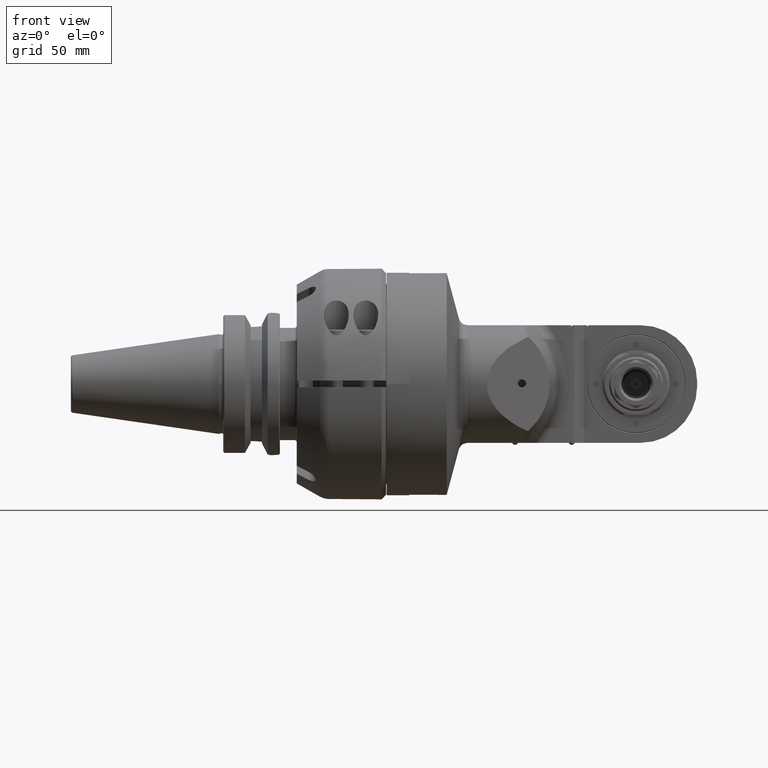
[diagram: clean part render]
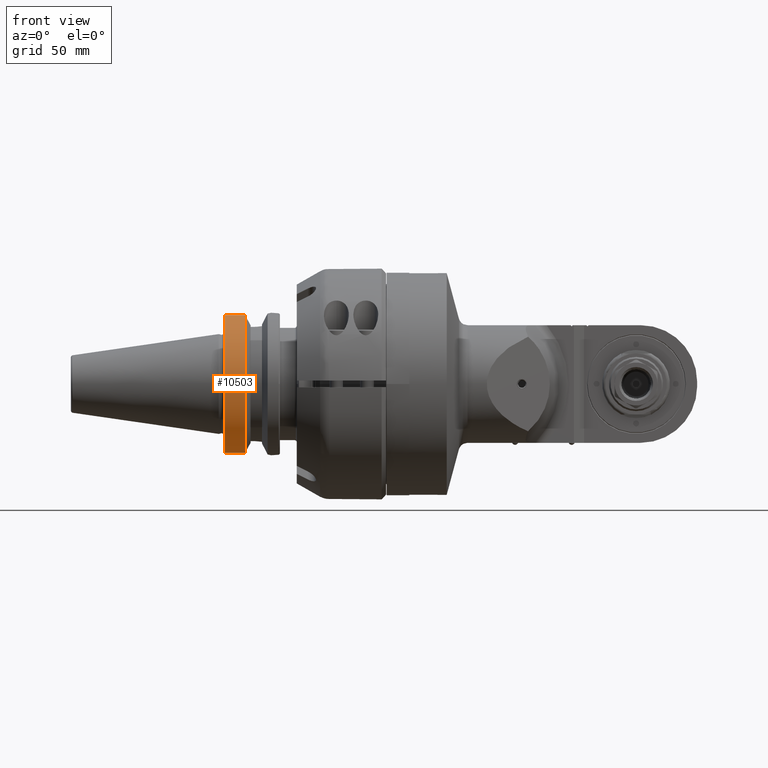
[diagram: same view with one face highlighted and labeled with its STEP entity id]
A machine part, front view. The second image highlights one B-rep face of the part: STEP entity #10503.
In plain terms, the highlighted cylindrical surface (partial cylindrical patch) has radius 31.5 mm, axis along (1, 0, 0).
Its self-contained STEP definition (entity closure, byte-faithful):
#477=CYLINDRICAL_SURFACE('',#11634,31.5);
#928=CIRCLE('',#11633,31.5);
#929=CIRCLE('',#11635,31.5);
#1821=FACE_OUTER_BOUND('',#2563,.T.);
#2563=EDGE_LOOP('',(#9289,#9290,#9291,#9292));
#3445=LINE('',#48248,#4160);
#3446=LINE('',#48249,#4161);
#4160=VECTOR('',#14358,9.09984426565313);
#4161=VECTOR('',#14359,9.09984426499114);
#5101=VERTEX_POINT('',#48221);
#5102=VERTEX_POINT('',#48222);
#5103=VERTEX_POINT('',#48245);
#5104=VERTEX_POINT('',#48246);
#6527=EDGE_CURVE('',#5101,#5102,#928,.T.);
#6530=EDGE_CURVE('',#5103,#5104,#929,.T.);
#6531=EDGE_CURVE('',#5103,#5102,#3445,.T.);
#6532=EDGE_CURVE('',#5101,#5104,#3446,.T.);
#9289=ORIENTED_EDGE('',*,*,#6530,.F.);
#9290=ORIENTED_EDGE('',*,*,#6531,.T.);
#9291=ORIENTED_EDGE('',*,*,#6527,.F.);
#9292=ORIENTED_EDGE('',*,*,#6532,.T.);
#10503=ADVANCED_FACE('',(#1821),#477,.T.);
#11633=AXIS2_PLACEMENT_3D('',#48223,#14352,#14353);
#11634=AXIS2_PLACEMENT_3D('',#48244,#14354,#14355);
#11635=AXIS2_PLACEMENT_3D('',#48247,#14356,#14357);
#14352=DIRECTION('center_axis',(-1.,0.,0.));
#14353=DIRECTION('ref_axis',(0.,-0.255555555555586,-0.966794372151946));
#14354=DIRECTION('center_axis',(1.,0.,0.));
#14355=DIRECTION('ref_axis',(0.,-1.,0.));
#14356=DIRECTION('center_axis',(1.,0.,0.));
#14357=DIRECTION('ref_axis',(0.,-1.,0.));
#14358=DIRECTION('',(-0.999999999999985,1.67431413362698E-7,4.42576437224694E-8));
#14359=DIRECTION('',(0.999999999999985,-1.67422253072997E-7,4.42552215923993E-8));
#48221=CARTESIAN_POINT('',(-83.5,-8.05,-30.45402272279));
#48222=CARTESIAN_POINT('',(-83.5,-8.05,30.45402272279));
#48223=CARTESIAN_POINT('Origin',(-83.5,0.,0.));
#48244=CARTESIAN_POINT('Origin',(-71.5,0.,0.));
#48245=CARTESIAN_POINT('',(-74.4001419651638,-8.05000076617519,30.454022446529));
#48246=CARTESIAN_POINT('',(-74.4001470886158,-8.05000065109323,-30.45402345732));
#48247=CARTESIAN_POINT('Origin',(-74.40014200632,0.,0.));
#48248=CARTESIAN_POINT('',(-74.40015573435,-8.0500015236,30.45402232005));
#48249=CARTESIAN_POINT('',(-83.5,-8.05,-30.45402272279));